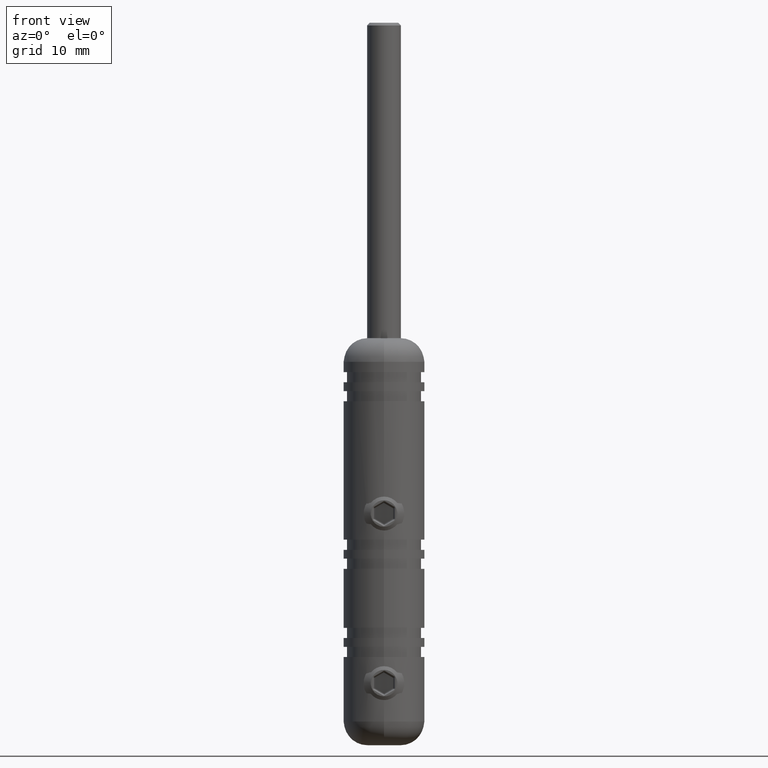
[diagram: clean part render]
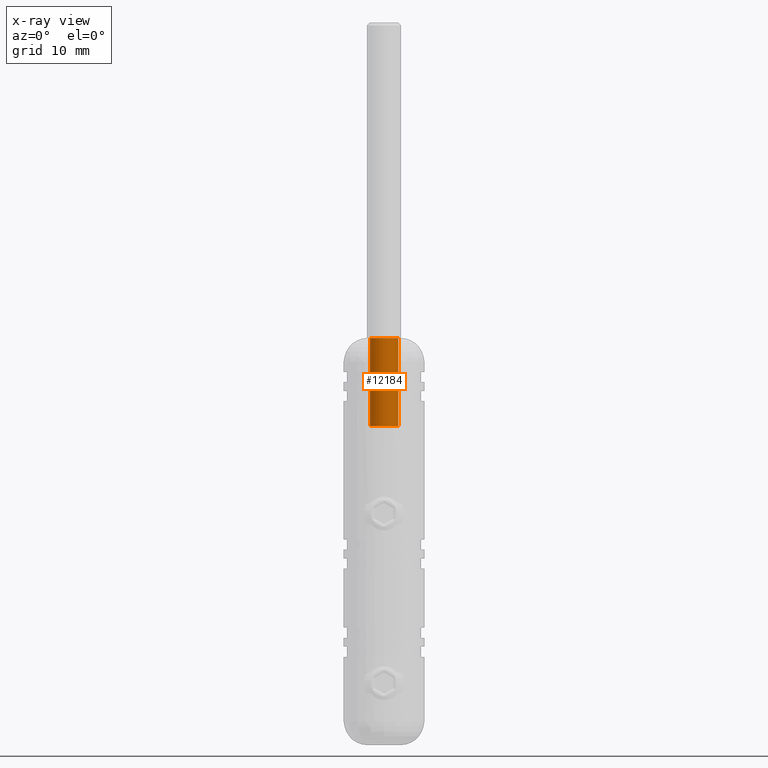
[diagram: x-ray — body ghosted, one internal face saturated and labeled with its STEP entity id]
A machine part, front view, then the same camera in x-ray: the body is ghosted and one INTERNAL B-rep face — a face not visible from any outside direction — is saturated and labeled: STEP entity #12184.
In plain terms, the highlighted cylindrical surface (edge-blend (fillet) strip) has radius 2.1 mm, axis along (0, 0, 1).
Its self-contained STEP definition (entity closure, byte-faithful):
#77 = AXIS2_PLACEMENT_3D ( 'NONE', #9999, #12630, #7251 ) ;
#332 = FACE_OUTER_BOUND ( 'NONE', #16891, .T. ) ;
#654 = CARTESIAN_POINT ( 'NONE',  ( 0.0000000000000000000, 3.709435617530339000E-015, 30.00000000000000000 ) ) ;
#919 = ORIENTED_EDGE ( 'NONE', *, *, #4449, .F. ) ;
#1326 = ORIENTED_EDGE ( 'NONE', *, *, #15538, .F. ) ;
#1664 = AXIS2_PLACEMENT_3D ( 'NONE', #13933, #11280, #3222 ) ;
#1685 = AXIS2_PLACEMENT_3D ( 'NONE', #654, #3400, #1937 ) ;
#1937 = DIRECTION ( 'NONE',  ( 1.000000000000000000, 0.0000000000000000000, 0.0000000000000000000 ) ) ;
#1946 = CIRCLE ( 'NONE', #77, 2.099999999999997000 ) ;
#2052 = CARTESIAN_POINT ( 'NONE',  ( -2.099999999999997400, 3.966611445351282600E-015, 30.00000000000000000 ) ) ;
#2274 = CARTESIAN_POINT ( 'NONE',  ( -2.099999999999997000, 3.966611445351282600E-015, 16.99999999999999600 ) ) ;
#2279 = CIRCLE ( 'NONE', #1664, 2.099999999999997900 ) ;
#2423 = VERTEX_POINT ( 'NONE', #7262 ) ;
#2542 = VERTEX_POINT ( 'NONE', #16472 ) ;
#3222 = DIRECTION ( 'NONE',  ( 1.000000000000000000, 0.0000000000000000000, 0.0000000000000000000 ) ) ;
#3400 = DIRECTION ( 'NONE',  ( -0.0000000000000000000, -0.0000000000000000000, 1.000000000000000000 ) ) ;
#3817 = LINE ( 'NONE', #2052, #11397 ) ;
#4081 = EDGE_CURVE ( 'NONE', #5967, #2423, #3817, .T. ) ;
#4449 = EDGE_CURVE ( 'NONE', #5967, #14796, #1946, .T. ) ;
#4942 = ORIENTED_EDGE ( 'NONE', *, *, #4081, .T. ) ;
#4973 = CARTESIAN_POINT ( 'NONE',  ( 2.099999999999997400, 3.709435617530339000E-015, 30.00000000000000000 ) ) ;
#5313 = VECTOR ( 'NONE', #11611, 1000.000000000000000 ) ;
#5967 = VERTEX_POINT ( 'NONE', #2274 ) ;
#7070 = EDGE_CURVE ( 'NONE', #2423, #2542, #2279, .T. ) ;
#7251 = DIRECTION ( 'NONE',  ( 1.000000000000000000, 0.0000000000000000000, 0.0000000000000000000 ) ) ;
#7262 = CARTESIAN_POINT ( 'NONE',  ( -2.099999999999997900, 3.966611445351282600E-015, 30.00000000000000000 ) ) ;
#7819 = LINE ( 'NONE', #4973, #5313 ) ;
#9999 = CARTESIAN_POINT ( 'NONE',  ( 0.0000000000000000000, 3.709435617530339000E-015, 16.99999999999999600 ) ) ;
#10328 = ORIENTED_EDGE ( 'NONE', *, *, #7070, .T. ) ;
#10553 = CARTESIAN_POINT ( 'NONE',  ( 2.099999999999997000, 3.709435617530339000E-015, 16.99999999999999600 ) ) ;
#11280 = DIRECTION ( 'NONE',  ( -0.0000000000000000000, -0.0000000000000000000, 1.000000000000000000 ) ) ;
#11397 = VECTOR ( 'NONE', #13928, 1000.000000000000000 ) ;
#11611 = DIRECTION ( 'NONE',  ( -0.0000000000000000000, -0.0000000000000000000, 1.000000000000000000 ) ) ;
#12184 = ADVANCED_FACE ( 'NONE', ( #332 ), #13929, .F. ) ;
#12630 = DIRECTION ( 'NONE',  ( -0.0000000000000000000, -0.0000000000000000000, 1.000000000000000000 ) ) ;
#13928 = DIRECTION ( 'NONE',  ( -0.0000000000000000000, -0.0000000000000000000, 1.000000000000000000 ) ) ;
#13929 = CYLINDRICAL_SURFACE ( 'NONE', #1685, 2.099999999999997400 ) ;
#13933 = CARTESIAN_POINT ( 'NONE',  ( 0.0000000000000000000, 3.709435617530339000E-015, 30.00000000000000000 ) ) ;
#14796 = VERTEX_POINT ( 'NONE', #10553 ) ;
#15538 = EDGE_CURVE ( 'NONE', #14796, #2542, #7819, .T. ) ;
#16472 = CARTESIAN_POINT ( 'NONE',  ( 2.099999999999997900, 3.709435617530339000E-015, 30.00000000000000000 ) ) ;
#16891 = EDGE_LOOP ( 'NONE', ( #919, #4942, #10328, #1326 ) ) ;